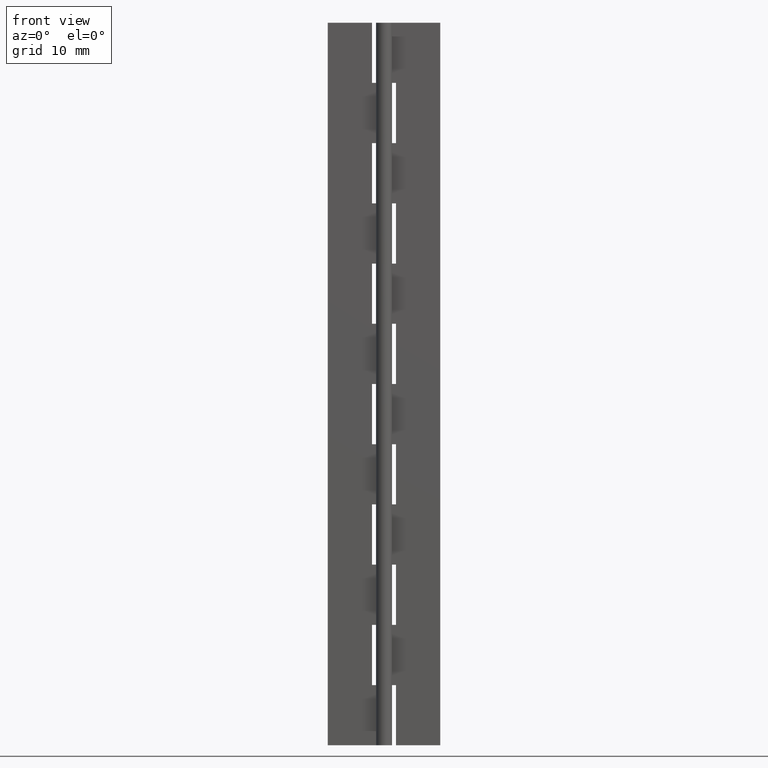
[diagram: clean part render]
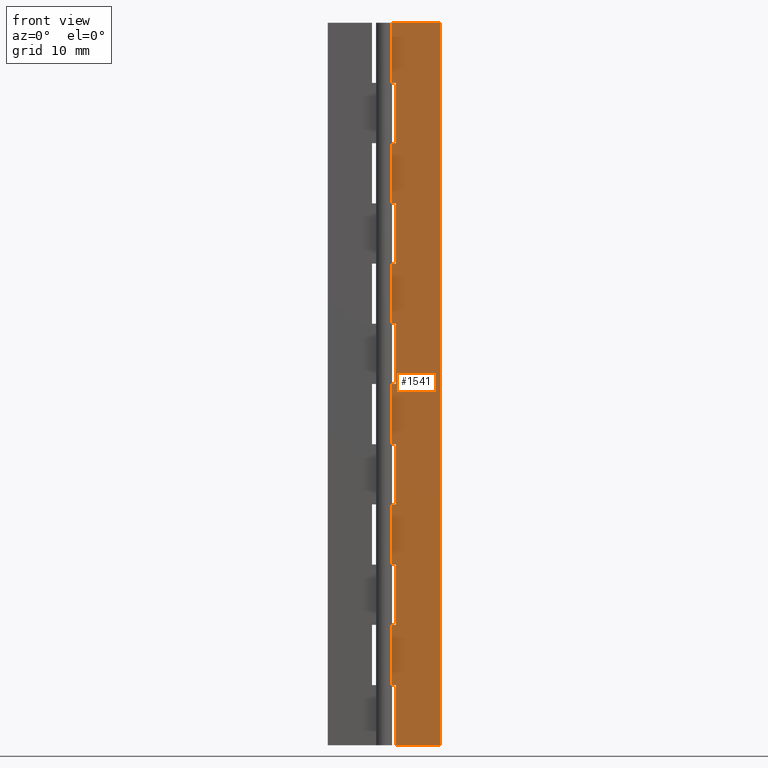
[diagram: same view with one face highlighted and labeled with its STEP entity id]
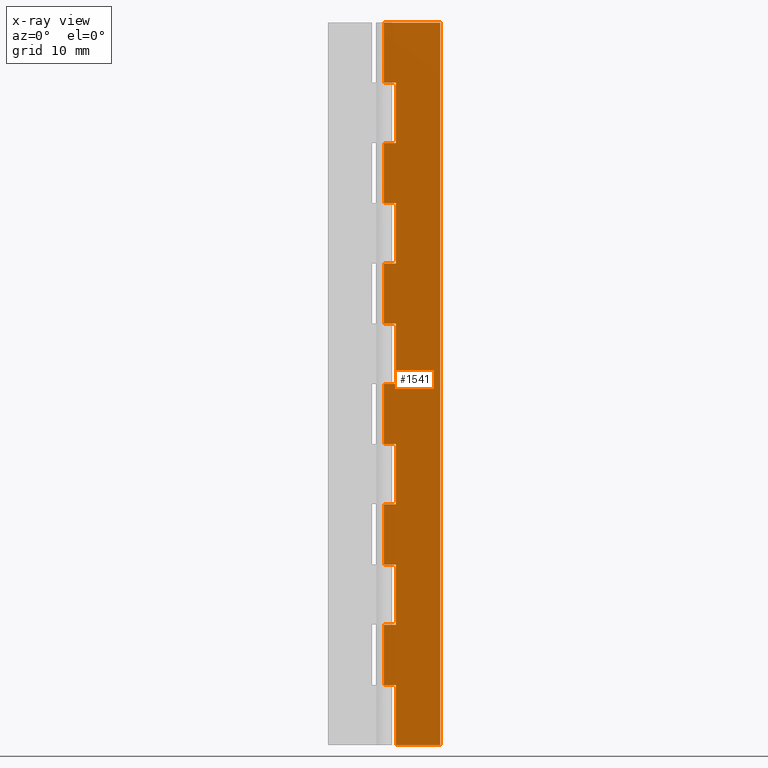
[diagram: x-ray of the same camera — body ghosted, the highlighted face saturated]
A machine part, front view. The second image highlights one B-rep face of the part: STEP entity #1541.
The next image is the same camera in x-ray: the body ghosted, the highlighted face saturated — about 0% of this face is hidden behind the body in this view.
In plain terms, the highlighted face is a freeform B-spline surface patch.
Its self-contained STEP definition (entity closure, byte-faithful):
#79=CARTESIAN_POINT('',(1.500000000000000,0.500000000000000,82.500000000000000));
#80=VERTEX_POINT('',#79);
#86=CARTESIAN_POINT('',(-9.184262E-017,0.500000000000000,82.500000000000000));
#87=VERTEX_POINT('',#86);
#88=CARTESIAN_POINT('',(1.500000000000000,0.500000000000000,82.500000000000000));
#89=CARTESIAN_POINT('',(-9.184262E-017,0.500000000000000,82.500000000000000));
#90=QUASI_UNIFORM_CURVE('',1,(#88,#89),.UNSPECIFIED.,.F.,.U.);
#91=EDGE_CURVE('',#80,#87,#90,.T.);
#127=CARTESIAN_POINT('',(1.500000000000000,0.499999999999945,75.0));
#128=VERTEX_POINT('',#127);
#129=CARTESIAN_POINT('',(1.500000000000000,0.499999999999945,75.0));
#130=CARTESIAN_POINT('',(1.500000000000000,0.500000000000000,82.500000000000000));
#131=QUASI_UNIFORM_CURVE('',1,(#129,#130),.UNSPECIFIED.,.F.,.U.);
#132=EDGE_CURVE('',#128,#80,#131,.T.);
#185=CARTESIAN_POINT('',(-9.184262E-017,0.500000000000000,75.0));
#186=VERTEX_POINT('',#185);
#206=CARTESIAN_POINT('',(-9.184262E-017,0.500000000000000,75.0));
#207=CARTESIAN_POINT('',(1.500000000000000,0.499999999999945,75.0));
#208=QUASI_UNIFORM_CURVE('',1,(#206,#207),.UNSPECIFIED.,.F.,.U.);
#209=EDGE_CURVE('',#186,#128,#208,.T.);
#255=CARTESIAN_POINT('',(1.500000000000000,0.500000000000000,67.500000000000000));
#256=VERTEX_POINT('',#255);
#262=CARTESIAN_POINT('',(-9.184262E-017,0.500000000000000,67.500000000000000));
#263=VERTEX_POINT('',#262);
#264=CARTESIAN_POINT('',(1.500000000000000,0.500000000000000,67.500000000000000));
#265=CARTESIAN_POINT('',(-9.184262E-017,0.500000000000000,67.500000000000000));
#266=QUASI_UNIFORM_CURVE('',1,(#264,#265),.UNSPECIFIED.,.F.,.U.);
#267=EDGE_CURVE('',#256,#263,#266,.T.);
#303=CARTESIAN_POINT('',(1.500000000000000,0.499999999999945,60.0));
#304=VERTEX_POINT('',#303);
#305=CARTESIAN_POINT('',(1.500000000000000,0.499999999999945,60.0));
#306=CARTESIAN_POINT('',(1.500000000000000,0.500000000000000,67.500000000000000));
#307=QUASI_UNIFORM_CURVE('',1,(#305,#306),.UNSPECIFIED.,.F.,.U.);
#308=EDGE_CURVE('',#304,#256,#307,.T.);
#361=CARTESIAN_POINT('',(-9.184262E-017,0.500000000000000,60.0));
#362=VERTEX_POINT('',#361);
#382=CARTESIAN_POINT('',(-9.184262E-017,0.500000000000000,60.0));
#383=CARTESIAN_POINT('',(1.500000000000000,0.499999999999945,60.0));
#384=QUASI_UNIFORM_CURVE('',1,(#382,#383),.UNSPECIFIED.,.F.,.U.);
#385=EDGE_CURVE('',#362,#304,#384,.T.);
#431=CARTESIAN_POINT('',(1.500000000000000,0.500000000000000,52.500000000000000));
#432=VERTEX_POINT('',#431);
#438=CARTESIAN_POINT('',(-9.184262E-017,0.500000000000000,52.500000000000000));
#439=VERTEX_POINT('',#438);
#440=CARTESIAN_POINT('',(1.500000000000000,0.500000000000000,52.500000000000000));
#441=CARTESIAN_POINT('',(-9.184262E-017,0.500000000000000,52.500000000000000));
#442=QUASI_UNIFORM_CURVE('',1,(#440,#441),.UNSPECIFIED.,.F.,.U.);
#443=EDGE_CURVE('',#432,#439,#442,.T.);
#479=CARTESIAN_POINT('',(1.500000000000000,0.499999999999945,45.0));
#480=VERTEX_POINT('',#479);
#481=CARTESIAN_POINT('',(1.500000000000000,0.499999999999945,45.0));
#482=CARTESIAN_POINT('',(1.500000000000000,0.500000000000000,52.500000000000000));
#483=QUASI_UNIFORM_CURVE('',1,(#481,#482),.UNSPECIFIED.,.F.,.U.);
#484=EDGE_CURVE('',#480,#432,#483,.T.);
#537=CARTESIAN_POINT('',(-9.184262E-017,0.500000000000000,45.0));
#538=VERTEX_POINT('',#537);
#558=CARTESIAN_POINT('',(-9.184262E-017,0.500000000000000,45.0));
#559=CARTESIAN_POINT('',(1.500000000000000,0.499999999999945,45.0));
#560=QUASI_UNIFORM_CURVE('',1,(#558,#559),.UNSPECIFIED.,.F.,.U.);
#561=EDGE_CURVE('',#538,#480,#560,.T.);
#607=CARTESIAN_POINT('',(1.500000000000000,0.500000000000000,37.500000000000000));
#608=VERTEX_POINT('',#607);
#614=CARTESIAN_POINT('',(-9.184262E-017,0.500000000000000,37.500000000000000));
#615=VERTEX_POINT('',#614);
#616=CARTESIAN_POINT('',(1.500000000000000,0.500000000000000,37.500000000000000));
#617=CARTESIAN_POINT('',(-9.184262E-017,0.500000000000000,37.500000000000000));
#618=QUASI_UNIFORM_CURVE('',1,(#616,#617),.UNSPECIFIED.,.F.,.U.);
#619=EDGE_CURVE('',#608,#615,#618,.T.);
#655=CARTESIAN_POINT('',(1.500000000000000,0.499999999999945,30.0));
#656=VERTEX_POINT('',#655);
#657=CARTESIAN_POINT('',(1.500000000000000,0.499999999999945,30.0));
#658=CARTESIAN_POINT('',(1.500000000000000,0.500000000000000,37.500000000000000));
#659=QUASI_UNIFORM_CURVE('',1,(#657,#658),.UNSPECIFIED.,.F.,.U.);
#660=EDGE_CURVE('',#656,#608,#659,.T.);
#713=CARTESIAN_POINT('',(-9.184262E-017,0.500000000000000,30.0));
#714=VERTEX_POINT('',#713);
#734=CARTESIAN_POINT('',(-9.184262E-017,0.500000000000000,30.0));
#735=CARTESIAN_POINT('',(1.500000000000000,0.499999999999945,30.0));
#736=QUASI_UNIFORM_CURVE('',1,(#734,#735),.UNSPECIFIED.,.F.,.U.);
#737=EDGE_CURVE('',#714,#656,#736,.T.);
#783=CARTESIAN_POINT('',(1.500000000000000,0.500000000000000,22.500000000000000));
#784=VERTEX_POINT('',#783);
#790=CARTESIAN_POINT('',(-9.184262E-017,0.500000000000000,22.500000000000000));
#791=VERTEX_POINT('',#790);
#792=CARTESIAN_POINT('',(1.500000000000000,0.500000000000000,22.500000000000000));
#793=CARTESIAN_POINT('',(-9.184262E-017,0.500000000000000,22.500000000000000));
#794=QUASI_UNIFORM_CURVE('',1,(#792,#793),.UNSPECIFIED.,.F.,.U.);
#795=EDGE_CURVE('',#784,#791,#794,.T.);
#831=CARTESIAN_POINT('',(1.500000000000000,0.499999999999945,15.0));
#832=VERTEX_POINT('',#831);
#833=CARTESIAN_POINT('',(1.500000000000000,0.499999999999945,15.0));
#834=CARTESIAN_POINT('',(1.500000000000000,0.500000000000000,22.500000000000000));
#835=QUASI_UNIFORM_CURVE('',1,(#833,#834),.UNSPECIFIED.,.F.,.U.);
#836=EDGE_CURVE('',#832,#784,#835,.T.);
#889=CARTESIAN_POINT('',(-9.184262E-017,0.500000000000000,15.0));
#890=VERTEX_POINT('',#889);
#910=CARTESIAN_POINT('',(-9.184262E-017,0.500000000000000,15.0));
#911=CARTESIAN_POINT('',(1.500000000000000,0.499999999999945,15.0));
#912=QUASI_UNIFORM_CURVE('',1,(#910,#911),.UNSPECIFIED.,.F.,.U.);
#913=EDGE_CURVE('',#890,#832,#912,.T.);
#929=CARTESIAN_POINT('',(1.500000000000000,0.499999999999945,0.0));
#930=VERTEX_POINT('',#929);
#931=CARTESIAN_POINT('',(1.500000000000000,0.499999999999945,7.500000000000000));
#932=VERTEX_POINT('',#931);
#933=CARTESIAN_POINT('',(1.500000000000000,0.499999999999945,0.0));
#934=CARTESIAN_POINT('',(1.500000000000000,0.499999999999945,7.500000000000000));
#935=QUASI_UNIFORM_CURVE('',1,(#933,#934),.UNSPECIFIED.,.F.,.U.);
#936=EDGE_CURVE('',#930,#932,#935,.T.);
#994=CARTESIAN_POINT('',(-9.184262E-017,0.500000000000000,7.500000000000000));
#995=VERTEX_POINT('',#994);
#996=CARTESIAN_POINT('',(1.500000000000000,0.499999999999945,7.500000000000000));
#997=CARTESIAN_POINT('',(-9.184262E-017,0.500000000000000,7.500000000000000));
#998=QUASI_UNIFORM_CURVE('',1,(#996,#997),.UNSPECIFIED.,.F.,.U.);
#999=EDGE_CURVE('',#932,#995,#998,.T.);
#1035=CARTESIAN_POINT('',(7.0,0.500000000000000,90.0));
#1036=VERTEX_POINT('',#1035);
#1079=CARTESIAN_POINT('',(-9.184548E-017,0.500000000000000,90.0));
#1080=VERTEX_POINT('',#1079);
#1100=CARTESIAN_POINT('',(-9.184548E-017,0.500000000000000,90.0));
#1101=CARTESIAN_POINT('',(7.0,0.500000000000000,90.0));
#1102=QUASI_UNIFORM_CURVE('',1,(#1100,#1101),.UNSPECIFIED.,.F.,.U.);
#1103=EDGE_CURVE('',#1080,#1036,#1102,.T.);
#1113=CARTESIAN_POINT('',(7.0,0.500000000000000,0.0));
#1114=VERTEX_POINT('',#1113);
#1128=CARTESIAN_POINT('',(7.0,0.500000000000000,90.0));
#1129=CARTESIAN_POINT('',(7.0,0.500000000000000,0.0));
#1130=QUASI_UNIFORM_CURVE('',1,(#1128,#1129),.UNSPECIFIED.,.F.,.U.);
#1131=EDGE_CURVE('',#1036,#1114,#1130,.T.);
#1148=CARTESIAN_POINT('',(1.500000000000000,0.499999999999945,0.0));
#1149=CARTESIAN_POINT('',(7.0,0.500000000000000,0.0));
#1150=QUASI_UNIFORM_CURVE('',1,(#1148,#1149),.UNSPECIFIED.,.F.,.U.);
#1151=EDGE_CURVE('',#930,#1114,#1150,.T.);
#1178=CARTESIAN_POINT('',(-9.184262E-017,0.500000000000000,15.0));
#1179=CARTESIAN_POINT('',(-9.184262E-017,0.500000000000000,7.500000000000000));
#1180=QUASI_UNIFORM_CURVE('',1,(#1178,#1179),.UNSPECIFIED.,.F.,.U.);
#1181=EDGE_CURVE('',#890,#995,#1180,.T.);
#1264=CARTESIAN_POINT('',(-9.184262E-017,0.500000000000000,30.0));
#1265=CARTESIAN_POINT('',(-9.184262E-017,0.500000000000000,22.500000000000000));
#1266=QUASI_UNIFORM_CURVE('',1,(#1264,#1265),.UNSPECIFIED.,.F.,.U.);
#1267=EDGE_CURVE('',#714,#791,#1266,.T.);
#1350=CARTESIAN_POINT('',(-9.184262E-017,0.500000000000000,45.0));
#1351=CARTESIAN_POINT('',(-9.184262E-017,0.500000000000000,37.500000000000000));
#1352=QUASI_UNIFORM_CURVE('',1,(#1350,#1351),.UNSPECIFIED.,.F.,.U.);
#1353=EDGE_CURVE('',#538,#615,#1352,.T.);
#1436=CARTESIAN_POINT('',(-9.184262E-017,0.500000000000000,60.0));
#1437=CARTESIAN_POINT('',(-9.184262E-017,0.500000000000000,52.500000000000000));
#1438=QUASI_UNIFORM_CURVE('',1,(#1436,#1437),.UNSPECIFIED.,.F.,.U.);
#1439=EDGE_CURVE('',#362,#439,#1438,.T.);
#1500=CARTESIAN_POINT('',(-0.349649986432642,0.500000000000000,-4.495499825562538));
#1501=CARTESIAN_POINT('',(-0.349649986432642,0.500000000000000,94.495502239550646));
#1502=CARTESIAN_POINT('',(7.349650174187273,0.500000000000000,-4.495499825562538));
#1503=CARTESIAN_POINT('',(7.349650174187273,0.500000000000000,94.495502239550646));
#1504=B_SPLINE_SURFACE_WITH_KNOTS('',1,1,((#1500,#1502),(#1501,#1503)),.UNSPECIFIED.,.F.,.F.,.U.,(2,2),(2,2),(0.0,98.991002065113179),(0.0,7.699300160619915),.UNSPECIFIED.);
#1505=ORIENTED_EDGE('',*,*,#209,.F.);
#1506=CARTESIAN_POINT('',(-9.184262E-017,0.500000000000000,75.0));
#1507=CARTESIAN_POINT('',(-9.184262E-017,0.500000000000000,67.500000000000000));
#1508=QUASI_UNIFORM_CURVE('',1,(#1506,#1507),.UNSPECIFIED.,.F.,.U.);
#1509=EDGE_CURVE('',#186,#263,#1508,.T.);
#1510=ORIENTED_EDGE('',*,*,#1509,.T.);
#1511=ORIENTED_EDGE('',*,*,#267,.F.);
#1512=ORIENTED_EDGE('',*,*,#308,.F.);
#1513=ORIENTED_EDGE('',*,*,#385,.F.);
#1514=ORIENTED_EDGE('',*,*,#1439,.T.);
#1515=ORIENTED_EDGE('',*,*,#443,.F.);
#1516=ORIENTED_EDGE('',*,*,#484,.F.);
#1517=ORIENTED_EDGE('',*,*,#561,.F.);
#1518=ORIENTED_EDGE('',*,*,#1353,.T.);
#1519=ORIENTED_EDGE('',*,*,#619,.F.);
#1520=ORIENTED_EDGE('',*,*,#660,.F.);
#1521=ORIENTED_EDGE('',*,*,#737,.F.);
#1522=ORIENTED_EDGE('',*,*,#1267,.T.);
#1523=ORIENTED_EDGE('',*,*,#795,.F.);
#1524=ORIENTED_EDGE('',*,*,#836,.F.);
#1525=ORIENTED_EDGE('',*,*,#913,.F.);
#1526=ORIENTED_EDGE('',*,*,#1181,.T.);
#1527=ORIENTED_EDGE('',*,*,#999,.F.);
#1528=ORIENTED_EDGE('',*,*,#936,.F.);
#1529=ORIENTED_EDGE('',*,*,#1151,.T.);
#1530=ORIENTED_EDGE('',*,*,#1131,.F.);
#1531=ORIENTED_EDGE('',*,*,#1103,.F.);
#1532=CARTESIAN_POINT('',(-9.184548E-017,0.500000000000000,90.0));
#1533=CARTESIAN_POINT('',(-9.184262E-017,0.500000000000000,82.500000000000000));
#1534=QUASI_UNIFORM_CURVE('',1,(#1532,#1533),.UNSPECIFIED.,.F.,.U.);
#1535=EDGE_CURVE('',#1080,#87,#1534,.T.);
#1536=ORIENTED_EDGE('',*,*,#1535,.T.);
#1537=ORIENTED_EDGE('',*,*,#91,.F.);
#1538=ORIENTED_EDGE('',*,*,#132,.F.);
#1539=EDGE_LOOP('',(#1505,#1510,#1511,#1512,#1513,#1514,#1515,#1516,#1517,#1518,#1519,#1520,#1521,#1522,#1523,#1524,#1525,#1526,#1527,#1528,#1529,#1530,#1531,#1536,#1537,#1538));
#1540=FACE_OUTER_BOUND('',#1539,.T.);
#1541=ADVANCED_FACE('',(#1540),#1504,.F.);